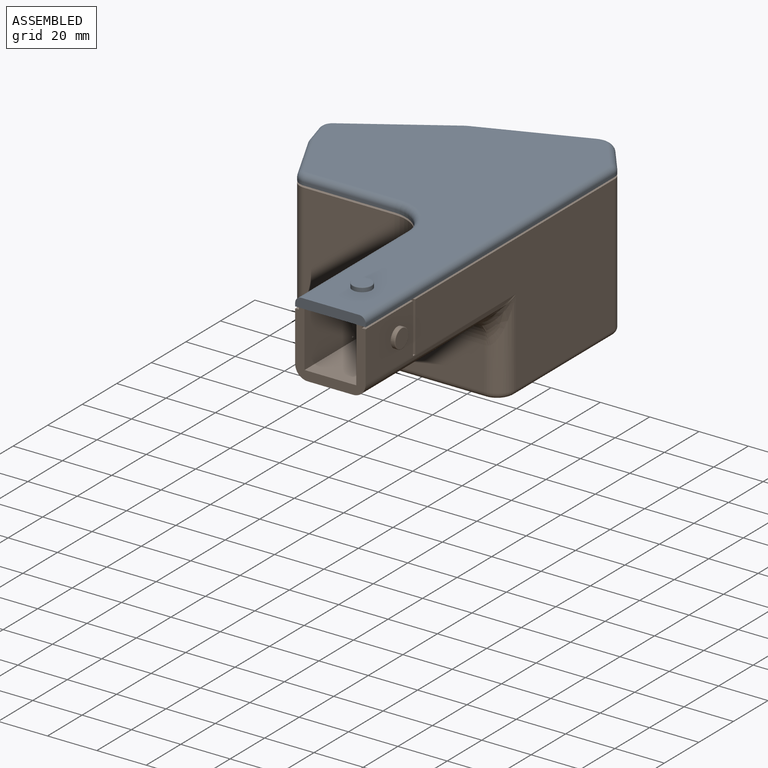
[diagram: assembled view]
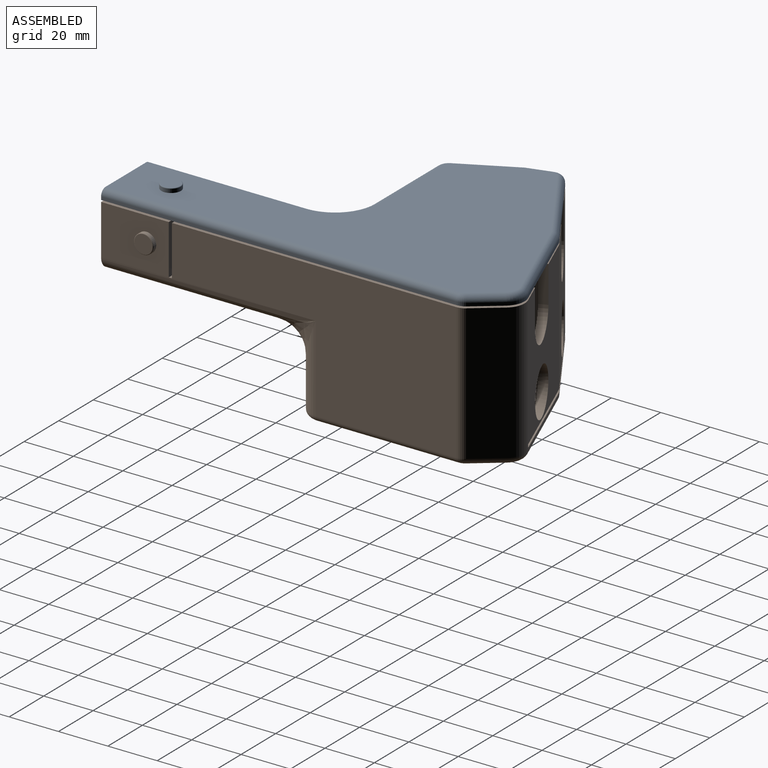
[diagram: assembled view, second angle]
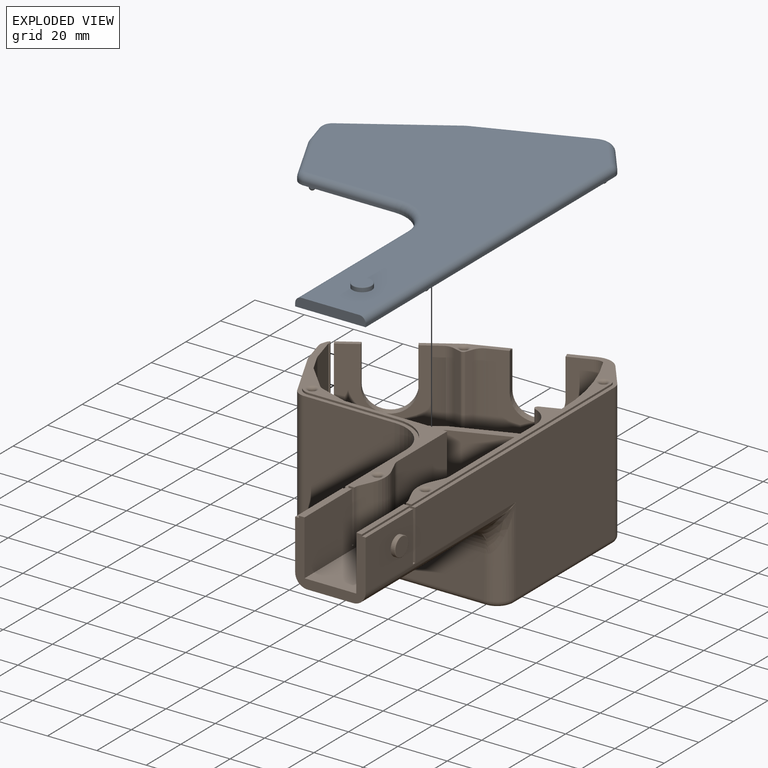
[diagram: exploded view]
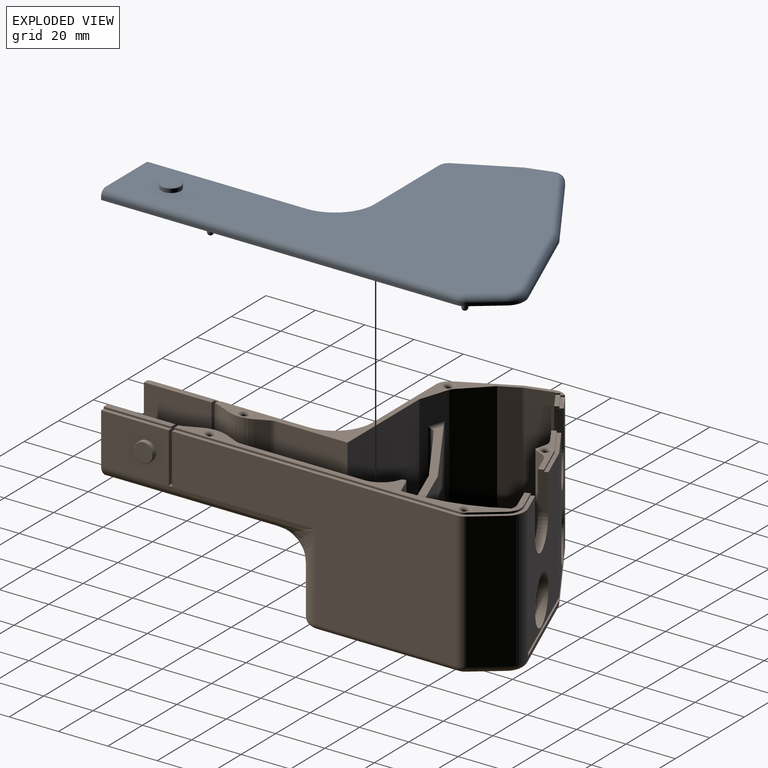
[diagram: exploded view, second angle]
ASSEMBLY  parts=2 mates=3
PART A: 53 faces, bbox 161.5x100.4x9.2 mm
  f0: plane 158.37x94.49mm, normal (0,0,1), area 7406.3mm2, adj f6,f18,f19,f20,f21,f22,f23,f24
  f1: plane 41.14x16.34mm, normal (-0.93,-0.37,0), area 56.3mm2, adj f2,f17,f22,f35
  f2: cylinder r=7.62mm len=8.85mm, axis (0,0,-1), area 12.5mm2, adj f1,f3,f17,f21
  f3: plane 10.77x8.28mm, normal (-0.61,0.79,0), area 17.3mm2, adj f2,f4,f17,f20
  f4: cylinder r=5.08mm len=3.1mm, axis (0,0,-1), area 4.2mm2, adj f3,f5,f17,f19
  f5: plane 144.07x1.27mm, normal (0,1,0), area 183.3mm2, adj f4,f6,f17,f18
  f6: plane 28.58x3.81mm, normal (1,0,0), area 106.2mm2, adj f0,f5,f7,f17,f18,f32
  f7: plane 64.14x1.27mm, normal (0,-1,0), area 81.6mm2, adj f6,f8,f17,f32
  f8: cylinder r=15.24mm len=15.24mm, axis (0,0,-1), area 30.5mm2, adj f7,f9,f17,f31
  f9: plane 36.89x1.27mm, normal (1,0,0), area 46.9mm2, adj f8,f10,f17,f30
  f10: cylinder r=5.08mm len=4.53mm, axis (0,0,-1), area 7.1mm2, adj f9,f11,f17,f29
  f11: plane 21.91x11.11mm, normal (0.45,-0.89,0), area 31.3mm2, adj f10,f12,f17,f28
  f12: cylinder r=5.08mm len=1.27mm, axis (0,0,-1), area 1.2mm2, adj f11,f13,f17,f27
  f13: plane 9.39x2.68mm, normal (0.27,-0.96,0), area 12.4mm2, adj f12,f14,f17,f26
  f14: cylinder r=5.08mm len=5.13mm, axis (0,0,-1), area 7.1mm2, adj f13,f15,f17,f25
  f15: plane 1.27x1.03mm, normal (-0.81,-0.59,0), area 1.6mm2, adj f14,f16,f17,f24
  f16: plane 36.72x23.36mm, normal (-0.84,-0.54,0), area 55.4mm2, adj f15,f17,f23,f35
  f17: plane 160.91x99.57mm, normal (0,0,-1), area 8445.6mm2, adj f1,f2,f3,f4,f5,f6,f7,f8
  f18: cylinder r=2.54mm len=144.07mm, axis (-1,0,0), area 574.8mm2, adj f0,f5,f6,f19
  f19: torus R=2.54mm, axis (0,0,1), area 10.9mm2, adj f0,f4,f18,f20
  f20: cylinder r=2.54mm len=12.32mm, axis (-0.79,-0.61,0), area 54.2mm2, adj f0,f3,f19,f21
  f21: torus R=5.08mm, axis (0,0,1), area 34.6mm2, adj f0,f2,f20,f22
  f22: cylinder r=2.54mm len=42.08mm, axis (0.37,-0.93,0), area 176.6mm2, adj f0,f1,f21,f36
  f23: cylinder r=2.54mm len=38.08mm, axis (0.54,-0.84,0), area 173.5mm2, adj f0,f16,f24,f36
  f24: cylinder r=2.54mm len=2.8mm, axis (0.59,-0.81,0), area 4.7mm2, adj f0,f15,f23,f25
  f25: torus R=2.54mm, axis (0,0,1), area 18.1mm2, adj f0,f14,f24,f26
  f26: cylinder r=2.54mm len=10.09mm, axis (0.96,0.27,0), area 39mm2, adj f0,f13,f25,f27
  f27: torus R=2.54mm, axis (0,0,1), area 3.2mm2, adj f0,f12,f26,f28
  f28: cylinder r=2.54mm len=23.06mm, axis (0.89,0.45,0), area 98mm2, adj f0,f11,f27,f29
  f29: torus R=2.54mm, axis (0,0,1), area 18.3mm2, adj f0,f10,f28,f30
  f30: cylinder r=2.54mm len=36.89mm, axis (0,1,0), area 147.2mm2, adj f0,f9,f29,f31
  f31: torus R=17.78mm, axis (0,0,1), area 101.3mm2, adj f0,f8,f30,f32
  f32: cylinder r=2.54mm len=64.14mm, axis (1,0,0), area 255.9mm2, adj f0,f6,f7,f31
  f33: cylinder r=3.94mm len=7.87mm, axis (0,0,-1), area 37.7mm2, adj f0,f52
  f34: plane 7.37x7.37mm, normal (0,0,1), area 42.6mm2, adj f52
  f35: cylinder r=5.08mm len=1.27mm, axis (0,0,1), area 1.2mm2, adj f1,f16,f17,f36
  f36: torus R=2.54mm, axis (0,0,1), area 3.1mm2, adj f0,f22,f23,f35
  f37: torus R=2.49mm, axis (0,0,-1), area 21.1mm2, adj f17,f38
  f38: cylinder r=1.22mm len=2.44mm, axis (0,0,-1), area 8.6mm2, adj f37,f39
  f39: revolved ~2.44x2.44mm, area 9.5mm2, adj f38
  f40: torus R=2.49mm, axis (0,0,-1), area 21.1mm2, adj f17,f41
  f41: cylinder r=1.22mm len=2.44mm, axis (0,0,-1), area 8.6mm2, adj f40,f42
  f42: revolved ~2.44x2.44mm, area 9.5mm2, adj f41
  f43: torus R=2.49mm, axis (0,0,-1), area 21.1mm2, adj f17,f44
  f44: cylinder r=1.22mm len=2.44mm, axis (0,0,-1), area 8.6mm2, adj f43,f45
  f45: revolved ~2.44x2.44mm, area 9.5mm2, adj f44
  f46: torus R=2.49mm, axis (0,0,-1), area 21.1mm2, adj f17,f47
  f47: cylinder r=1.22mm len=2.44mm, axis (0,0,-1), area 8.6mm2, adj f46,f48
  f48: revolved ~2.44x2.44mm, area 9.5mm2, adj f47
  f49: torus R=2.49mm, axis (0,0,-1), area 21.1mm2, adj f17,f50
  f50: cylinder r=1.22mm len=2.44mm, axis (0,0,-1), area 8.6mm2, adj f49,f51
  f51: revolved ~2.44x2.44mm, area 9.5mm2, adj f50
  f52: torus R=3.68mm, axis (0,0,1), area 9.6mm2, adj f33,f34
PART B: 176 faces, bbox 58.5x161.6x101.8 mm
  f0: plane 53.59x30.67mm, normal (0,-0.85,-0.53), area 1213.8mm2, adj f14,f15,f32,f33,f72,f73,f75,f76
  f1: plane 54.05x50.19mm, normal (0,0,1), area 1758.8mm2, adj f35,f46,f138,f145,f146,f147,f159
  f2: plane 28.78x22.3mm, normal (0,0,-1), area 641.8mm2, adj f8,f38,f46,f152
  f3: plane 43.18x37.29mm, normal (0,0.93,0.36), area 1728mm2, adj f4,f7,f82,f148
  f4: plane 70.85x36.82mm, normal (1,0,0), area 240.1mm2, adj f3,f6,f9,f10,f54,f82,f83,f133
  f5: cylinder r=5.08mm len=55.32mm, axis (1,0,0), area 200.5mm2, adj f7,f26,f30,f35,f74,f76,f77,f148
  f6: plane 12.14x0.8mm, normal (0,0,1), area 9.7mm2, adj f4,f35,f137,f148
  f7: plane 92.85x71.26mm, normal (1,0,0), area 3388.7mm2, adj f3,f5,f10,f30,f31,f51,f52,f80
  f8: plane 61.01x53.79mm, normal (0,1,0), area 2842.7mm2, adj f2,f11,f38,f46,f132,f147
  f9: plane 41.91x29.37mm, normal (0,-0.85,-0.53), area 1453.4mm2, adj f4,f83,f135,f141
  f10: plane 43.52x33.61mm, normal (0,0.85,0.53), area 1711.5mm2, adj f4,f7,f82,f131,f133
  f11: cylinder r=1.52mm len=61.79mm, axis (0,0,-1), area 146.7mm2, adj f8,f40,f134,f146
  f12: plane 55.19x10.77mm, normal (0,0.61,-0.79), area 749.9mm2, adj f59,f78,f93,f107
  f13: plane 15.74x3.34mm, normal (0,0.36,-0.93), area 55.3mm2, adj f26,f28,f33,f70,f99,f103
  f14: plane 15.74x2.85mm, normal (0,-0.53,0.85), area 51.8mm2, adj f0,f29,f33,f72,f102,f103
  f15: plane 15.74x2.75mm, normal (0,0.53,-0.85), area 50mm2, adj f0,f29,f32,f72,f123,f124
  f16: plane 28.58x26.11mm, normal (0,-1,0), area 265.4mm2, adj f39,f41,f42,f43,f44,f45,f46,f47
  f17: plane 73.08x55.19mm, normal (0,-1,0), area 2752.8mm2, adj f18,f53,f60,f64,f65,f86,f112
  f18: cylinder r=15.24mm len=20.27mm, axis (1,0,0), area 485.2mm2, adj f17,f37,f62,f112
  f19: plane 21.03x3.81mm, normal (0,1,0), area 79mm2, adj f39,f42,f45,f68,f121,f122
  f20: plane 21.03x3.81mm, normal (0,-1,0), area 79mm2, adj f37,f38,f68,f112,f113,f156
  f21: plane 21.03x3.81mm, normal (0,-1,0), area 79mm2, adj f35,f36,f69,f106,f107,f157
  f22: plane 21.03x3.81mm, normal (0,1,0), area 79mm2, adj f43,f44,f47,f69,f104,f105
  f23: plane 15.74x3.45mm, normal (0,-0.36,0.93), area 57.2mm2, adj f26,f28,f35,f70,f107,f111
  f24: plane 54.86x2.64mm, normal (0,0.53,-0.85), area 169.5mm2, adj f31,f38,f74,f79,f112,f120
  f25: cylinder r=5.08mm len=52.83mm, axis (-1,0,0), area 50.6mm2, adj f28,f29,f76,f103
  f26: plane 53.59x34.48mm, normal (0,-0.93,-0.36), area 1255.9mm2, adj f5,f13,f23,f33,f35,f70,f71,f76
  f27: plane 41.58x16.52mm, normal (0,0.93,0.37), area 48.7mm2, adj f34,f74,f78,f97
  f28: plane 52.86x41.16mm, normal (0,0.93,0.37), area 1625.6mm2, adj f13,f23,f25,f70,f71,f76,f78,f103
  f29: plane 52.86x36.74mm, normal (0,0.84,0.54), area 1586.3mm2, adj f14,f15,f25,f72,f73,f75,f76,f103
  f30: plane 41.29x16.09mm, normal (0,-0.93,-0.36), area 20mm2, adj f5,f7,f31,f74
  f31: plane 55.32x38.36mm, normal (0,-0.85,-0.53), area 48.4mm2, adj f7,f24,f30,f38,f51,f74
  f32: plane 8.57x6.29mm, normal (1,0,0), area 15.4mm2, adj f0,f15,f75,f123
  f33: plane 28.38x15.71mm, normal (1,0,0), area 66.4mm2, adj f0,f13,f14,f26,f99,f100,f101,f102
  f34: plane 37.44x23.82mm, normal (0,0.84,0.54), area 48.2mm2, adj f27,f74,f79,f98
  f35: plane 130.63x25.5mm, normal (1,0,0), area 453.7mm2, adj f1,f5,f6,f21,f23,f26,f106,f108
  f36: plane 115.37x55.19mm, normal (0,0,-1), area 4331.4mm2, adj f21,f59,f60,f63,f89,f107
  f37: plane 35.43x20.27mm, normal (0,0,1), area 718.2mm2, adj f18,f20,f61,f112
  f38: plane 89.5x77.31mm, normal (1,0,0), area 420.4mm2, adj f2,f8,f20,f24,f31,f51,f52,f80
  f39: plane 27.43x2.29mm, normal (1,0,0), area 62.7mm2, adj f16,f19,f45,f121
  f40: plane 64.23x28.78mm, normal (1,0,0), area 1164.3mm2, adj f11,f136,f141,f142,f143,f144,f145
  f41: plane 66.83x18.57mm, normal (-1,0,0), area 1228.1mm2, adj f16,f61,f62,f63,f65,f66
  f42: plane 27.43x20.27mm, normal (0,0,1), area 507.3mm2, adj f16,f19,f55,f61,f122
  f43: plane 27.43x20.27mm, normal (0,0,-1), area 507.3mm2, adj f16,f22,f57,f63,f104
  f44: plane 27.43x2.29mm, normal (1,0,0), area 62.7mm2, adj f16,f22,f47,f105
  f45: plane 28.7x22.3mm, normal (0,0,-1), area 613.4mm2, adj f16,f19,f39,f46,f68,f156
  f46: plane 83.82x20.96mm, normal (1,0,0), area 1621.9mm2, adj f1,f2,f8,f16,f45,f47,f147,f152
  f47: plane 28.7x22.3mm, normal (0,0,1), area 613.4mm2, adj f16,f22,f44,f46,f69,f157
  f48: plane 94.49x76.45mm, normal (-1,0,0), area 5457.1mm2, adj f86,f87,f88,f89,f90,f91,f92,f93
  f49: plane 55.19x9.39mm, normal (0,-0.27,0.96), area 539mm2, adj f79,f81,f94,f112
  f50: plane 55.19x21.91mm, normal (0,-0.45,0.89), area 1355.5mm2, adj f53,f81,f90,f112
  f51: plane 55.32x10.45mm, normal (0,0.27,-0.96), area 601.2mm2, adj f7,f31,f38,f80
  f52: plane 55.32x7.41mm, normal (0,0.45,-0.89), area 459.7mm2, adj f7,f38,f80,f127
  f53: cylinder r=5.08mm len=55.19mm, axis (1,0,0), area 308.8mm2, adj f17,f50,f88,f112
  f54: plane 41.91x22.1mm, normal (0,-0.93,-0.36), area 994.2mm2, adj f4,f83,f138,f143
  f55: cylinder r=3.94mm len=7.87mm, axis (0,0,-1), area 37.7mm2, adj f42,f85
  f56: plane 7.37x7.37mm, normal (0,0,1), area 42.6mm2, adj f85
  f57: cylinder r=3.94mm len=7.87mm, axis (0,0,1), area 37.7mm2, adj f43,f84
  f58: plane 7.37x7.37mm, normal (0,0,-1), area 42.6mm2, adj f84
  f59: cylinder r=5.08mm len=55.19mm, axis (1,0,0), area 183.8mm2, adj f12,f36,f91,f107
  f60: cylinder r=7.62mm len=34.92mm, axis (1,0,0), area 277.2mm2, adj f17,f36,f66,f67,f87
  f61: cylinder r=5.08mm len=64.14mm, axis (0,1,0), area 511.8mm2, adj f16,f37,f41,f42,f62,f68
  f62: torus R=20.32mm, axis (-1,0,0), area 64.1mm2, adj f18,f41,f61,f64
  f63: cylinder r=5.08mm len=87mm, axis (0,-1,0), area 595.3mm2, adj f16,f36,f41,f43,f67,f69
  f64: bspline ~20.16x17.78mm, area 274.3mm2, adj f17,f62,f65
  f65: cylinder r=12.7mm len=16.03mm, axis (0,0,1), area 319.9mm2, adj f17,f41,f64,f66
  f66: torus R=20.32mm, axis (-1,0,0), area 30.6mm2, adj f41,f60,f65,f67
  f67: bspline ~20.32x17.78mm, area 161.2mm2, adj f60,f63,f66
  f68: plane 3.81x1.27mm, normal (1,0,0), area 4.8mm2, adj f19,f20,f45,f61
  f69: plane 3.81x1.27mm, normal (1,0,0), area 4.8mm2, adj f21,f22,f47,f63
  f70: cylinder r=9.53mm len=19.1mm, axis (0,-0.93,-0.36), area 109.1mm2, adj f13,f23,f26,f28
  f71: cylinder r=9.53mm len=19.1mm, axis (0,-0.93,-0.36), area 218.3mm2, adj f26,f28
  f72: cylinder r=9.53mm len=17.92mm, axis (0,-0.85,-0.53), area 99mm2, adj f0,f14,f15,f29
  f73: cylinder r=9.53mm len=19.05mm, axis (0,-0.85,-0.53), area 198mm2, adj f0,f29
  f74: plane 81.11x43.52mm, normal (1,0,0), area 311.6mm2, adj f5,f24,f27,f30,f31,f34,f77,f78
  f75: plane 53.59x2.71mm, normal (0,-0.53,0.85), area 170.3mm2, adj f0,f29,f32,f76,f123,f124
  f76: plane 80.08x42.84mm, normal (-1,0,0), area 333.9mm2, adj f0,f5,f25,f26,f28,f29,f75,f77
  f77: plane 3.52x1.37mm, normal (0,-0.36,0.93), area 4.8mm2, adj f5,f74,f76,f78
  f78: cylinder r=7.62mm len=55.19mm, axis (1,0,0), area 543.8mm2, adj f12,f27,f28,f74,f76,f77,f95,f107
  f79: cylinder r=5.08mm len=55.19mm, axis (1,0,0), area 310.5mm2, adj f24,f34,f49,f74,f96,f112
  f80: cylinder r=5.08mm len=55.32mm, axis (1,0,0), area 53.8mm2, adj f7,f38,f51,f52
  f81: cylinder r=5.08mm len=55.19mm, axis (1,0,0), area 53.6mm2, adj f49,f50,f92,f112
  f82: cylinder r=5.08mm len=43.18mm, axis (1,0,0), area 41.5mm2, adj f3,f4,f7,f10
  f83: cylinder r=5.08mm len=41.91mm, axis (1,0,0), area 40.3mm2, adj f4,f9,f54,f142
  f84: torus R=3.68mm, axis (0,0,-1), area 9.6mm2, adj f57,f58
  f85: torus R=3.68mm, axis (0,0,1), area 9.6mm2, adj f55,f56
  f86: cylinder r=2.54mm len=73.08mm, axis (0,0,1), area 291.6mm2, adj f17,f48,f87,f88
  f87: torus R=5.08mm, axis (1,0,0), area 42mm2, adj f48,f60,f86,f89
  f88: torus R=2.54mm, axis (1,0,0), area 18.3mm2, adj f48,f53,f86,f90
  f89: cylinder r=2.54mm len=57.07mm, axis (0,-1,0), area 227.7mm2, adj f36,f48,f87,f91
  f90: cylinder r=2.54mm len=23.06mm, axis (0,0.89,0.45), area 98mm2, adj f48,f50,f88,f92
  f91: torus R=2.54mm, axis (1,0,0), area 10.9mm2, adj f48,f59,f89,f93
  f92: torus R=2.54mm, axis (1,0,0), area 3.2mm2, adj f48,f81,f90,f94
  f93: cylinder r=2.54mm len=12.32mm, axis (0,-0.79,-0.61), area 54.2mm2, adj f12,f48,f91,f95
  f94: cylinder r=2.54mm len=10.09mm, axis (0,0.96,0.27), area 39mm2, adj f48,f49,f92,f96
  f95: torus R=5.08mm, axis (1,0,0), area 34.6mm2, adj f48,f78,f93,f97
  f96: torus R=2.54mm, axis (1,0,0), area 21.3mm2, adj f48,f79,f94,f98
  f97: cylinder r=2.54mm len=42.52mm, axis (0,-0.37,0.93), area 178mm2, adj f27,f48,f95,f98
  f98: cylinder r=2.54mm len=38.8mm, axis (0,-0.54,0.84), area 176.6mm2, adj f34,f48,f96,f97
  f99: plane 13.9x5.52mm, normal (0,0.93,0.37), area 11.4mm2, adj f13,f33,f100,f103
  f100: cylinder r=5.08mm len=0.85mm, axis (1,0,0), area 0.7mm2, adj f33,f99,f101,f103
  f101: plane 12.56x7.99mm, normal (0,0.84,0.54), area 11.3mm2, adj f33,f100,f102,f103
  f102: plane 0.76x0.32mm, normal (0,0.85,0.53), area 0.3mm2, adj f14,f33,f101,f103
  f103: plane 28.44x15.57mm, normal (1,0,0), area 47.7mm2, adj f13,f14,f25,f28,f29,f99,f100,f101
  f104: plane 27.43x1.52mm, normal (1,0,0), area 41.8mm2, adj f16,f22,f43,f105
  f105: plane 27.43x0.76mm, normal (0,0,-1), area 20.9mm2, adj f16,f22,f44,f104
  f106: plane 115.28x0.76mm, normal (0,0,-1), area 87.8mm2, adj f21,f35,f107,f108
  f107: plane 132.21x27.58mm, normal (1,0,0), area 230.1mm2, adj f12,f21,f23,f28,f36,f59,f78,f106
  f108: cylinder r=3.81mm len=2.32mm, axis (1,0,0), area 1.9mm2, adj f35,f106,f107,f109
  f109: plane 10.55x8.12mm, normal (0,0.61,-0.79), area 10.1mm2, adj f35,f107,f108,f110
  f110: cylinder r=6.35mm len=7.38mm, axis (1,0,0), area 6.3mm2, adj f35,f107,f109,f111
  f111: plane 9.22x3.66mm, normal (0,0.93,0.37), area 7.6mm2, adj f23,f35,f107,f110
  f112: plane 90.79x72.52mm, normal (1,0,0), area 218.6mm2, adj f17,f18,f20,f24,f37,f49,f50,f53
  f113: plane 35.69x0.76mm, normal (0,0,1), area 27.2mm2, adj f20,f38,f112,f114
  f114: cylinder r=16.51mm len=16.51mm, axis (1,0,0), area 19.8mm2, adj f38,f112,f113,f115
  f115: plane 36.2x0.76mm, normal (0,-1,0), area 27.6mm2, adj f38,f112,f114,f116
  f116: cylinder r=5.08mm len=4.53mm, axis (1,0,0), area 4.3mm2, adj f38,f112,f115,f117
  f117: plane 20.94x10.62mm, normal (0,-0.45,0.89), area 17.9mm2, adj f38,f112,f116,f118
  f118: cylinder r=5.08mm len=0.9mm, axis (1,0,0), area 0.7mm2, adj f38,f112,f117,f119
  f119: plane 9.9x2.83mm, normal (0,-0.27,0.96), area 7.8mm2, adj f38,f112,f118,f120
  f120: cylinder r=2.54mm len=2.77mm, axis (1,0,0), area 2.4mm2, adj f24,f38,f112,f119
  f121: plane 27.43x0.76mm, normal (0,0,1), area 20.9mm2, adj f16,f19,f39,f122
  f122: plane 27.43x1.52mm, normal (1,0,0), area 41.8mm2, adj f16,f19,f42,f121
  f123: plane 7.65x4.87mm, normal (0,0.84,0.54), area 6.9mm2, adj f15,f32,f75,f124
  f124: plane 8.46x6.16mm, normal (1,0,0), area 13.8mm2, adj f15,f29,f75,f123
  f125: plane 55.32x11.17mm, normal (0,0.95,-0.31), area 321.5mm2, adj f7,f38,f126,f131,f132,f133,f134,f135
  f126: cylinder r=5.08mm len=55.32mm, axis (1,0,0), area 137.9mm2, adj f7,f38,f125,f127
  f127: plane 55.32x10.27mm, normal (0,0.69,-0.72), area 787.9mm2, adj f7,f38,f52,f126
  f128: torus R=2.54mm, axis (1,0,0), area 21.7mm2, adj f38,f129
  f129: cylinder r=1.27mm len=2.54mm, axis (1,0,0), area 8.9mm2, adj f128,f130
  f130: sphere r=1.27mm, area 10.1mm2, adj f129
  f131: cylinder r=1.27mm len=44.45mm, axis (-1,0,0), area 48.8mm2, adj f7,f10,f125,f133
  f132: cylinder r=1.27mm len=53.79mm, axis (-1,0,0), area 21.5mm2, adj f8,f38,f125,f134
  f133: cylinder r=1.27mm len=7.32mm, axis (0,0.31,0.95), area 11.2mm2, adj f4,f10,f125,f131,f135
  f134: bspline ~1.79x1.74mm, area 1.6mm2, adj f11,f125,f132,f136
  f135: cylinder r=1.27mm len=43.18mm, axis (1,0,0), area 121.6mm2, adj f4,f9,f125,f133,f140
  f136: cylinder r=1.27mm len=2.83mm, axis (0,-0.31,-0.95), area 5.1mm2, adj f40,f125,f134,f140
  f137: plane 12.14x7.16mm, normal (0,0.93,0.36), area 93.2mm2, adj f4,f6,f35,f139
  f138: cylinder r=10.16mm len=54.05mm, axis (1,0,0), area 982.8mm2, adj f1,f4,f35,f54,f139,f144
  f139: cylinder r=1.27mm len=12.14mm, axis (1,0,0), area 37.9mm2, adj f4,f35,f137,f138
  f140: sphere r=1.27mm, area 3.7mm2, adj f135,f136,f141
  f141: cylinder r=1.27mm len=30.04mm, axis (0,0.53,-0.85), area 69.2mm2, adj f9,f40,f140,f142
  f142: torus R=3.81mm, axis (-1,0,0), area 1.7mm2, adj f40,f83,f141,f143
  f143: cylinder r=1.27mm len=22.56mm, axis (0,0.36,-0.93), area 47.3mm2, adj f40,f54,f142,f144
  f144: torus R=8.89mm, axis (-1,0,0), area 37.6mm2, adj f40,f138,f143,f145
  f145: cylinder r=1.27mm len=19.89mm, axis (0,1,0), area 39.7mm2, adj f1,f40,f144,f146
  f146: torus R=0.25mm, axis (0,0,-1), area 3.3mm2, adj f1,f11,f145,f147
  f147: cylinder r=1.27mm len=31.49mm, axis (1,0,0), area 62.8mm2, adj f1,f8,f46,f146
  f148: cylinder r=76.2mm len=55.32mm, axis (1,0,0), area 2043mm2, adj f3,f4,f5,f6,f7,f35
  f149: torus R=2.54mm, axis (1,0,0), area 21.7mm2, adj f35,f150
  f150: cylinder r=1.27mm len=2.54mm, axis (1,0,0), area 8.9mm2, adj f149,f151
  f151: sphere r=1.27mm, area 10.1mm2, adj f150
  f152: cylinder r=5.08mm len=22.3mm, axis (1,0,0), area 47.2mm2, adj f2,f38,f46,f153
  f153: plane 22.3x5.33mm, normal (0,0.41,-0.91), area 130.1mm2, adj f38,f46,f152,f154
  f154: cylinder r=12.7mm len=22.3mm, axis (1,0,0), area 236.2mm2, adj f38,f46,f153,f155
  f155: plane 22.3x5.33mm, normal (0,-0.41,-0.91), area 130.1mm2, adj f38,f46,f154,f156
  f156: cylinder r=5.08mm len=22.3mm, axis (1,0,0), area 47.2mm2, adj f20,f38,f45,f46,f155
  f157: cylinder r=5.08mm len=22.3mm, axis (1,0,0), area 47.3mm2, adj f21,f35,f46,f47,f158
  f158: plane 22.3x5.33mm, normal (0,-0.41,0.91), area 130mm2, adj f35,f46,f157,f160
  f159: cylinder r=5.08mm len=22.3mm, axis (1,0,0), area 47.3mm2, adj f1,f35,f46,f161
  f160: cylinder r=12.7mm len=22.3mm, axis (1,0,0), area 236.4mm2, adj f35,f46,f158,f161
  f161: plane 22.3x5.33mm, normal (0,0.41,0.91), area 130mm2, adj f35,f46,f159,f160
  f162: torus R=2.54mm, axis (1,0,0), area 21.7mm2, adj f35,f163
  f163: cylinder r=1.27mm len=2.54mm, axis (1,0,0), area 8.9mm2, adj f162,f164
  f164: sphere r=1.27mm, area 10.1mm2, adj f163
  f165: torus R=2.54mm, axis (1,0,0), area 21.7mm2, adj f38,f166
  f166: cylinder r=1.27mm len=2.54mm, axis (1,0,0), area 8.9mm2, adj f165,f167
  f167: sphere r=1.27mm, area 10.1mm2, adj f166
  f168: cylinder r=1.27mm len=53.59mm, axis (1,0,0), area 99.4mm2, adj f33,f76,f169,f170
  f169: plane 53.59x3.31mm, normal (0,-0.97,0.26), area 183.7mm2, adj f33,f76,f168,f171
  f170: plane 53.59x3.19mm, normal (0,-0.37,-0.93), area 183.7mm2, adj f33,f76,f168,f172
  f171: cylinder r=5.08mm len=53.59mm, axis (-1,0,0), area 224.5mm2, adj f0,f33,f76,f169
  f172: cylinder r=5.08mm len=53.59mm, axis (-1,0,0), area 224.5mm2, adj f26,f33,f76,f170
  f173: torus R=2.54mm, axis (1,0,0), area 21.7mm2, adj f33,f174
  f174: cylinder r=1.27mm len=2.54mm, axis (1,0,0), area 8.9mm2, adj f173,f175
  f175: sphere r=1.27mm, area 10.1mm2, adj f174
PLACE A rot(axis=(0,0,-1),90deg) t=(-305.8,-174.42,35.15)mm
PLACE B rot(axis=(0,-1,0),90deg) t=(31.87,-158.45,37.61)mm
MATE planar B.f35 <-> A.f17  axis (0,0,1) through (26.55,-57.4,35.15)mm
MATE planar A.f6 <-> B.f16  axis (0,-1,0) through (17.58,-158.45,37.02)mm
MATE planar A.f5 <-> B.f43  axis (1,0,0) through (31.87,-86.42,35.79)mm
